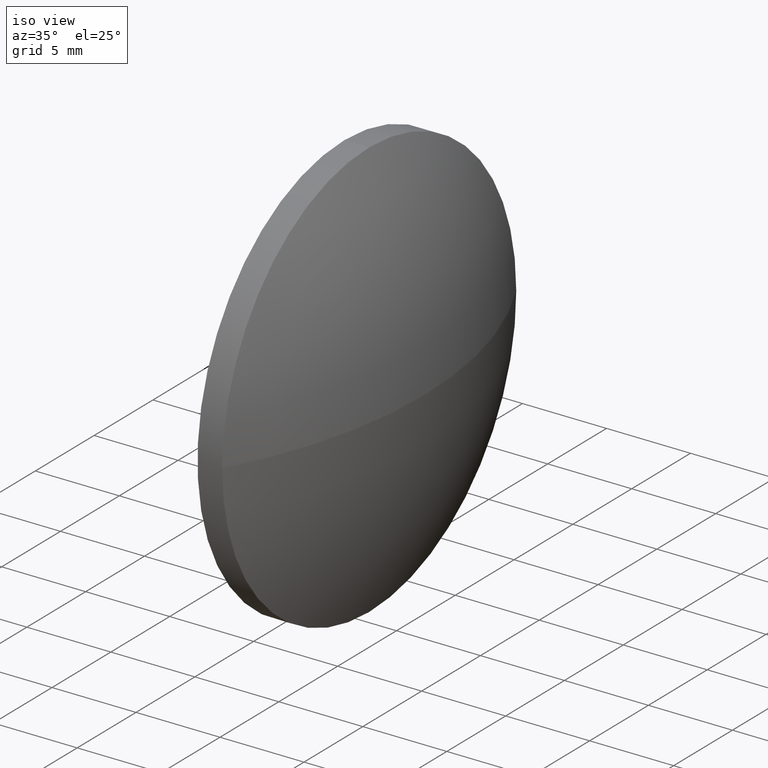
[diagram: clean part render]
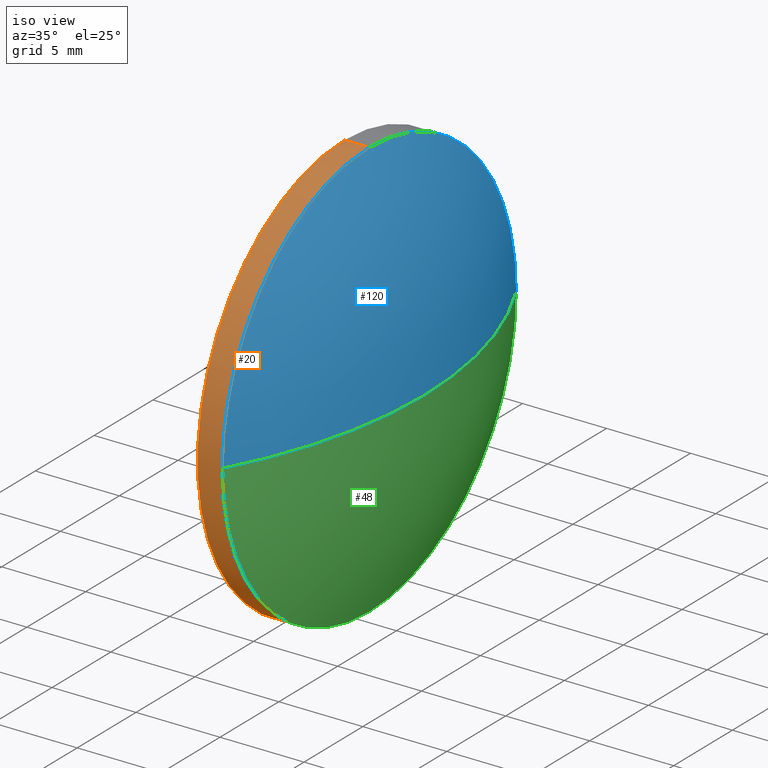
[diagram: same view with three faces highlighted in distinct colors, each labeled with its STEP entity id]
A machine part, iso view with three faces highlighted in distinct colors.
Their STEP definitions:

[orange] entity #20 — the highlighted cylindrical surface (partial cylindrical patch) has radius 12.5 mm, axis along (-1, -0, -0).
#3 = DIRECTION ( 'NONE',  ( -1.000000000000000000, -0.0000000000000000000, -0.0000000000000000000 ) ) ;
#11 = DIRECTION ( 'NONE',  ( -1.000000000000000000, -0.0000000000000000000, -0.0000000000000000000 ) ) ;
#18 = FACE_OUTER_BOUND ( 'NONE', #143, .T. ) ;
#20 = ADVANCED_FACE ( 'NONE', ( #18 ), #47, .T. ) ;
#23 = CARTESIAN_POINT ( 'NONE',  ( 426.8600550591363600, -24.92783604908413500, 12.49999999999999800 ) ) ;
#25 = DIRECTION ( 'NONE',  ( -1.000000000000000000, -0.0000000000000000000, -0.0000000000000000000 ) ) ;
#27 = CARTESIAN_POINT ( 'NONE',  ( 428.3300550591363800, -24.92783604908413500, 0.0000000000000000000 ) ) ;
#29 = VERTEX_POINT ( 'NONE', #88 ) ;
#32 = EDGE_CURVE ( 'NONE', #154, #164, #155, .T. ) ;
#35 = CARTESIAN_POINT ( 'NONE',  ( 424.8309474806993600, -24.92783604908413500, -12.49999999999999800 ) ) ;
#41 = ORIENTED_EDGE ( 'NONE', *, *, #177, .T. ) ;
#43 = DIRECTION ( 'NONE',  ( 0.0000000000000000000, 0.0000000000000000000, 1.000000000000000000 ) ) ;
#47 = CYLINDRICAL_SURFACE ( 'NONE', #169, 12.49999999999999800 ) ;
#49 = ORIENTED_EDGE ( 'NONE', *, *, #32, .T. ) ;
#53 = DIRECTION ( 'NONE',  ( 0.0000000000000000000, 0.0000000000000000000, 1.000000000000000000 ) ) ;
#54 = DIRECTION ( 'NONE',  ( 0.0000000000000000000, 0.0000000000000000000, 1.000000000000000000 ) ) ;
#56 = CARTESIAN_POINT ( 'NONE',  ( 424.8309474806993600, -24.92783604908413500, 12.49999999999999800 ) ) ;
#63 = EDGE_CURVE ( 'NONE', #138, #154, #179, .T. ) ;
#67 = VECTOR ( 'NONE', #119, 1000.000000000000000 ) ;
#80 = CIRCLE ( 'NONE', #90, 12.49999999999999800 ) ;
#88 = CARTESIAN_POINT ( 'NONE',  ( 426.8600550591363600, -24.92783604908413500, -12.49999999999999800 ) ) ;
#90 = AXIS2_PLACEMENT_3D ( 'NONE', #184, #150, #53 ) ;
#95 = CARTESIAN_POINT ( 'NONE',  ( 428.3300550591363800, -24.92783604908413500, 12.49999999999999800 ) ) ;
#98 = ORIENTED_EDGE ( 'NONE', *, *, #128, .F. ) ;
#99 = AXIS2_PLACEMENT_3D ( 'NONE', #27, #101, #43 ) ;
#101 = DIRECTION ( 'NONE',  ( -1.000000000000000000, -0.0000000000000000000, -0.0000000000000000000 ) ) ;
#113 = CARTESIAN_POINT ( 'NONE',  ( 424.8309474806993600, -24.92783604908413500, 0.0000000000000000000 ) ) ;
#119 = DIRECTION ( 'NONE',  ( -1.000000000000000000, -0.0000000000000000000, -0.0000000000000000000 ) ) ;
#122 = CARTESIAN_POINT ( 'NONE',  ( 428.3300550591363800, -24.92783604908413500, 0.0000000000000000000 ) ) ;
#125 = ORIENTED_EDGE ( 'NONE', *, *, #137, .F. ) ;
#128 = EDGE_CURVE ( 'NONE', #29, #134, #80, .T. ) ;
#130 = AXIS2_PLACEMENT_3D ( 'NONE', #122, #25, #54 ) ;
#134 = VERTEX_POINT ( 'NONE', #23 ) ;
#136 = CARTESIAN_POINT ( 'NONE',  ( 428.3300550591363800, -24.92783604908413500, -12.49999999999999800 ) ) ;
#137 = EDGE_CURVE ( 'NONE', #138, #29, #139, .T. ) ;
#138 = VERTEX_POINT ( 'NONE', #136 ) ;
#139 = LINE ( 'NONE', #35, #67 ) ;
#143 = EDGE_LOOP ( 'NONE', ( #125, #168, #49, #41, #98 ) ) ;
#144 = LINE ( 'NONE', #56, #174 ) ;
#145 = DIRECTION ( 'NONE',  ( 0.0000000000000000000, 0.0000000000000000000, 1.000000000000000000 ) ) ;
#150 = DIRECTION ( 'NONE',  ( -1.000000000000000000, -0.0000000000000000000, -0.0000000000000000000 ) ) ;
#154 = VERTEX_POINT ( 'NONE', #166 ) ;
#155 = CIRCLE ( 'NONE', #99, 12.49999999999999800 ) ;
#164 = VERTEX_POINT ( 'NONE', #95 ) ;
#166 = CARTESIAN_POINT ( 'NONE',  ( 428.3300550591363800, -37.42783604908416400, -1.530808498934191100E-015 ) ) ;
#168 = ORIENTED_EDGE ( 'NONE', *, *, #63, .T. ) ;
#169 = AXIS2_PLACEMENT_3D ( 'NONE', #113, #3, #145 ) ;
#174 = VECTOR ( 'NONE', #11, 1000.000000000000000 ) ;
#177 = EDGE_CURVE ( 'NONE', #164, #134, #144, .T. ) ;
#179 = CIRCLE ( 'NONE', #130, 12.49999999999999800 ) ;
#184 = CARTESIAN_POINT ( 'NONE',  ( 426.8600550591363600, -24.92783604908413500, 0.0000000000000000000 ) ) ;

[blue] entity #120 — the highlighted spherical surface has radius 25.8023 mm.
#1 = CARTESIAN_POINT ( 'NONE',  ( 405.7577485575884000, -24.92783604908417100, 0.0000000000000000000 ) ) ;
#6 = EDGE_CURVE ( 'NONE', #173, #182, #127, .T. ) ;
#7 = CARTESIAN_POINT ( 'NONE',  ( 405.7577485575884000, -24.92783604908417100, 0.0000000000000000000 ) ) ;
#12 = SPHERICAL_SURFACE ( 'NONE', #110, 25.80230650154802400 ) ;
#15 = ORIENTED_EDGE ( 'NONE', *, *, #34, .F. ) ;
#16 = DIRECTION ( 'NONE',  ( -0.0000000000000000000, 0.0000000000000000000, 1.000000000000000000 ) ) ;
#17 = CARTESIAN_POINT ( 'NONE',  ( 405.7577485575884000, -24.92783604908417100, 0.0000000000000000000 ) ) ;
#27 = CARTESIAN_POINT ( 'NONE',  ( 428.3300550591363800, -24.92783604908413500, 0.0000000000000000000 ) ) ;
#28 = DIRECTION ( 'NONE',  ( 0.0000000000000000000, 1.224646799147353200E-016, -1.000000000000000000 ) ) ;
#30 = FACE_OUTER_BOUND ( 'NONE', #124, .T. ) ;
#32 = EDGE_CURVE ( 'NONE', #154, #164, #155, .T. ) ;
#33 = ORIENTED_EDGE ( 'NONE', *, *, #32, .F. ) ;
#34 = EDGE_CURVE ( 'NONE', #173, #154, #50, .T. ) ;
#43 = DIRECTION ( 'NONE',  ( 0.0000000000000000000, 0.0000000000000000000, 1.000000000000000000 ) ) ;
#46 = CIRCLE ( 'NONE', #118, 12.49999999999999800 ) ;
#50 = CIRCLE ( 'NONE', #65, 25.80230650154802400 ) ;
#55 = ORIENTED_EDGE ( 'NONE', *, *, #86, .F. ) ;
#65 = AXIS2_PLACEMENT_3D ( 'NONE', #1, #28, #156 ) ;
#66 = CARTESIAN_POINT ( 'NONE',  ( 428.3300550591363800, -12.42783604908413700, 0.0000000000000000000 ) ) ;
#71 = CARTESIAN_POINT ( 'NONE',  ( 428.3300550591363800, -24.92783604908413500, 0.0000000000000000000 ) ) ;
#83 = AXIS2_PLACEMENT_3D ( 'NONE', #17, #16, #161 ) ;
#86 = EDGE_CURVE ( 'NONE', #164, #182, #46, .T. ) ;
#95 = CARTESIAN_POINT ( 'NONE',  ( 428.3300550591363800, -24.92783604908413500, 12.49999999999999800 ) ) ;
#99 = AXIS2_PLACEMENT_3D ( 'NONE', #27, #101, #43 ) ;
#101 = DIRECTION ( 'NONE',  ( -1.000000000000000000, -0.0000000000000000000, -0.0000000000000000000 ) ) ;
#105 = DIRECTION ( 'NONE',  ( -0.0000000000000000000, 0.0000000000000000000, -1.000000000000000000 ) ) ;
#109 = ORIENTED_EDGE ( 'NONE', *, *, #6, .T. ) ;
#110 = AXIS2_PLACEMENT_3D ( 'NONE', #7, #105, #153 ) ;
#118 = AXIS2_PLACEMENT_3D ( 'NONE', #71, #152, #123 ) ;
#120 = ADVANCED_FACE ( 'NONE', ( #30 ), #12, .T. ) ;
#123 = DIRECTION ( 'NONE',  ( 0.0000000000000000000, 0.0000000000000000000, 1.000000000000000000 ) ) ;
#124 = EDGE_LOOP ( 'NONE', ( #15, #109, #55, #33 ) ) ;
#127 = CIRCLE ( 'NONE', #83, 25.80230650154802400 ) ;
#132 = CARTESIAN_POINT ( 'NONE',  ( 431.5600550591364000, -24.92783604908417100, 0.0000000000000000000 ) ) ;
#152 = DIRECTION ( 'NONE',  ( -1.000000000000000000, -0.0000000000000000000, -0.0000000000000000000 ) ) ;
#153 = DIRECTION ( 'NONE',  ( 0.0000000000000000000, 1.000000000000000000, 0.0000000000000000000 ) ) ;
#154 = VERTEX_POINT ( 'NONE', #166 ) ;
#155 = CIRCLE ( 'NONE', #99, 12.49999999999999800 ) ;
#156 = DIRECTION ( 'NONE',  ( 0.0000000000000000000, 1.000000000000000000, 1.224646799147353200E-016 ) ) ;
#161 = DIRECTION ( 'NONE',  ( 1.000000000000000000, 0.0000000000000000000, 0.0000000000000000000 ) ) ;
#164 = VERTEX_POINT ( 'NONE', #95 ) ;
#166 = CARTESIAN_POINT ( 'NONE',  ( 428.3300550591363800, -37.42783604908416400, -1.530808498934191100E-015 ) ) ;
#173 = VERTEX_POINT ( 'NONE', #132 ) ;
#182 = VERTEX_POINT ( 'NONE', #66 ) ;

[green] entity #48 — the highlighted spherical surface has radius 25.8023 mm.
#1 = CARTESIAN_POINT ( 'NONE',  ( 405.7577485575884000, -24.92783604908417100, 0.0000000000000000000 ) ) ;
#6 = EDGE_CURVE ( 'NONE', #173, #182, #127, .T. ) ;
#13 = FACE_OUTER_BOUND ( 'NONE', #131, .T. ) ;
#14 = AXIS2_PLACEMENT_3D ( 'NONE', #159, #78, #116 ) ;
#16 = DIRECTION ( 'NONE',  ( -0.0000000000000000000, 0.0000000000000000000, 1.000000000000000000 ) ) ;
#17 = CARTESIAN_POINT ( 'NONE',  ( 405.7577485575884000, -24.92783604908417100, 0.0000000000000000000 ) ) ;
#25 = DIRECTION ( 'NONE',  ( -1.000000000000000000, -0.0000000000000000000, -0.0000000000000000000 ) ) ;
#28 = DIRECTION ( 'NONE',  ( 0.0000000000000000000, 1.224646799147353200E-016, -1.000000000000000000 ) ) ;
#34 = EDGE_CURVE ( 'NONE', #173, #154, #50, .T. ) ;
#36 = DIRECTION ( 'NONE',  ( 0.0000000000000000000, 0.0000000000000000000, 1.000000000000000000 ) ) ;
#48 = ADVANCED_FACE ( 'NONE', ( #13 ), #160, .T. ) ;
#50 = CIRCLE ( 'NONE', #65, 25.80230650154802400 ) ;
#54 = DIRECTION ( 'NONE',  ( 0.0000000000000000000, 0.0000000000000000000, 1.000000000000000000 ) ) ;
#63 = EDGE_CURVE ( 'NONE', #138, #154, #179, .T. ) ;
#65 = AXIS2_PLACEMENT_3D ( 'NONE', #1, #28, #156 ) ;
#66 = CARTESIAN_POINT ( 'NONE',  ( 428.3300550591363800, -12.42783604908413700, 0.0000000000000000000 ) ) ;
#70 = ORIENTED_EDGE ( 'NONE', *, *, #63, .F. ) ;
#76 = EDGE_CURVE ( 'NONE', #182, #138, #115, .T. ) ;
#78 = DIRECTION ( 'NONE',  ( -0.0000000000000000000, 0.0000000000000000000, -1.000000000000000000 ) ) ;
#81 = CARTESIAN_POINT ( 'NONE',  ( 428.3300550591363800, -24.92783604908413500, 0.0000000000000000000 ) ) ;
#83 = AXIS2_PLACEMENT_3D ( 'NONE', #17, #16, #161 ) ;
#102 = ORIENTED_EDGE ( 'NONE', *, *, #76, .F. ) ;
#107 = AXIS2_PLACEMENT_3D ( 'NONE', #81, #121, #36 ) ;
#115 = CIRCLE ( 'NONE', #107, 12.49999999999999800 ) ;
#116 = DIRECTION ( 'NONE',  ( 0.0000000000000000000, 1.000000000000000000, 0.0000000000000000000 ) ) ;
#121 = DIRECTION ( 'NONE',  ( -1.000000000000000000, -0.0000000000000000000, -0.0000000000000000000 ) ) ;
#122 = CARTESIAN_POINT ( 'NONE',  ( 428.3300550591363800, -24.92783604908413500, 0.0000000000000000000 ) ) ;
#127 = CIRCLE ( 'NONE', #83, 25.80230650154802400 ) ;
#129 = ORIENTED_EDGE ( 'NONE', *, *, #6, .F. ) ;
#130 = AXIS2_PLACEMENT_3D ( 'NONE', #122, #25, #54 ) ;
#131 = EDGE_LOOP ( 'NONE', ( #129, #176, #70, #102 ) ) ;
#132 = CARTESIAN_POINT ( 'NONE',  ( 431.5600550591364000, -24.92783604908417100, 0.0000000000000000000 ) ) ;
#136 = CARTESIAN_POINT ( 'NONE',  ( 428.3300550591363800, -24.92783604908413500, -12.49999999999999800 ) ) ;
#138 = VERTEX_POINT ( 'NONE', #136 ) ;
#154 = VERTEX_POINT ( 'NONE', #166 ) ;
#156 = DIRECTION ( 'NONE',  ( 0.0000000000000000000, 1.000000000000000000, 1.224646799147353200E-016 ) ) ;
#159 = CARTESIAN_POINT ( 'NONE',  ( 405.7577485575884000, -24.92783604908417100, 0.0000000000000000000 ) ) ;
#160 = SPHERICAL_SURFACE ( 'NONE', #14, 25.80230650154802400 ) ;
#161 = DIRECTION ( 'NONE',  ( 1.000000000000000000, 0.0000000000000000000, 0.0000000000000000000 ) ) ;
#166 = CARTESIAN_POINT ( 'NONE',  ( 428.3300550591363800, -37.42783604908416400, -1.530808498934191100E-015 ) ) ;
#173 = VERTEX_POINT ( 'NONE', #132 ) ;
#176 = ORIENTED_EDGE ( 'NONE', *, *, #34, .T. ) ;
#179 = CIRCLE ( 'NONE', #130, 12.49999999999999800 ) ;
#182 = VERTEX_POINT ( 'NONE', #66 ) ;